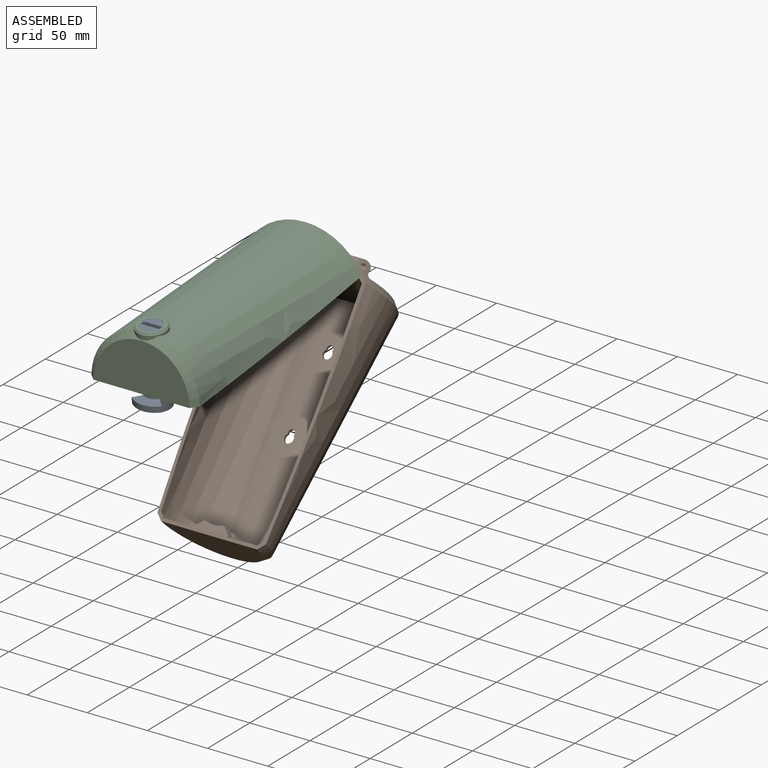
[diagram: assembled view]
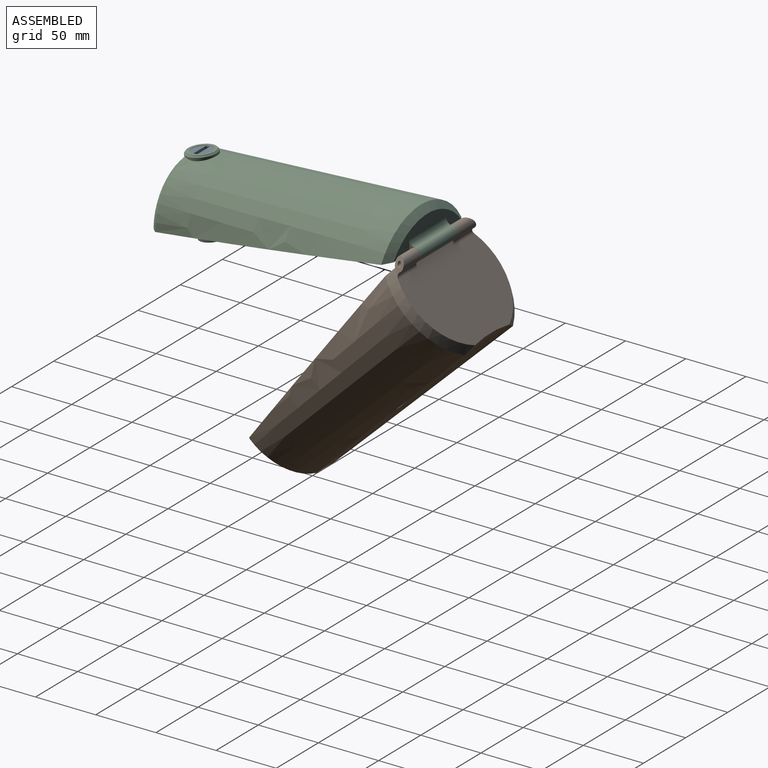
[diagram: assembled view, second angle]
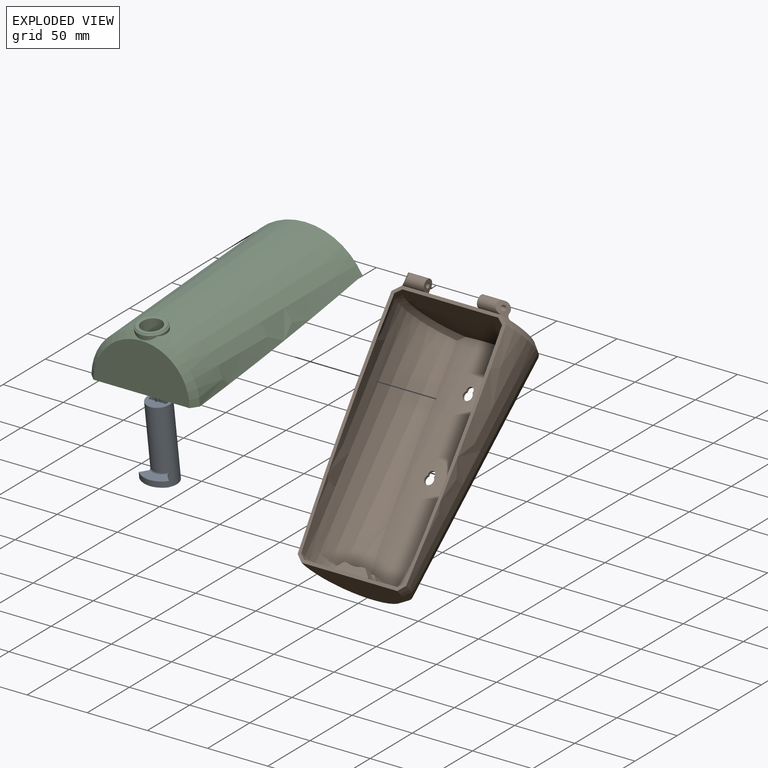
[diagram: exploded view]
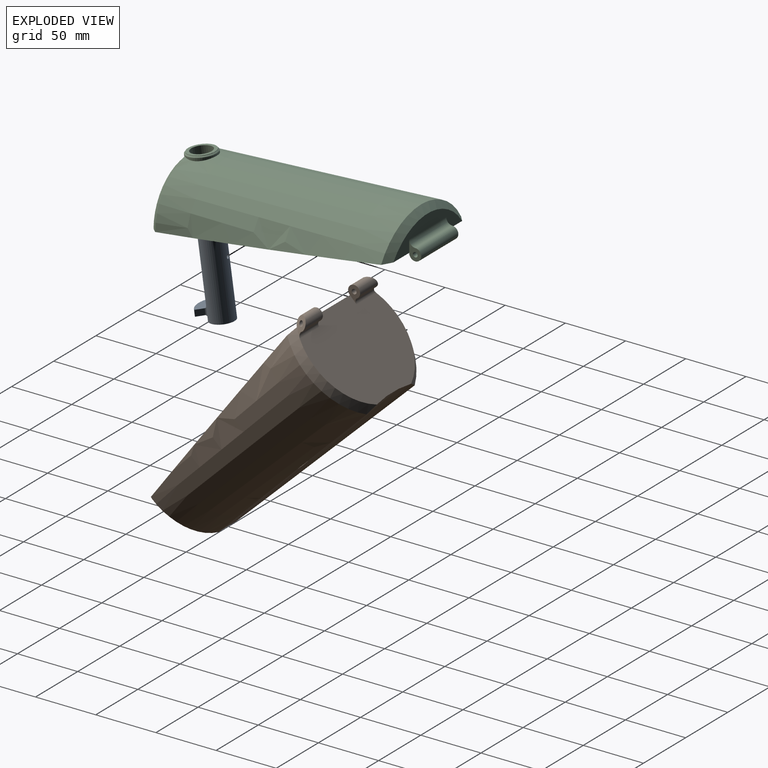
[diagram: exploded view, second angle]
ASSEMBLY  parts=3 mates=2
PART A: 31 faces, bbox 25.2x29.6x65.9 mm
  f0: cylinder r=10mm len=65.93mm, axis (0,0.14,-0.99), area 3855.2mm2, adj f1,f2,f21,f27,f28,f29,f30
  f1: plane 20x19.8mm, normal (0,-0.14,0.99), area 262.5mm2, adj f0,f3,f4,f5,f6,f8,f10,f13
  f2: plane 20x19.8mm, normal (0,0.14,-0.99), area 314.2mm2, adj f0
  f3: plane 13x5.15mm, normal (0,0.99,0.14), area 67.6mm2, adj f1,f10,f16,f19
  f4: plane 5.36x2.22mm, normal (-1,0,0), area 7.8mm2, adj f1,f13,f17,f19
  f5: plane 13x5.15mm, normal (0,-0.99,-0.14), area 67.6mm2, adj f1,f8,f12,f13
  f6: plane 5.36x2.22mm, normal (1,0,0), area 7.8mm2, adj f1,f8,f10,f11
  f7: plane 13x1.49mm, normal (0,-0.14,0.99), area 19.5mm2, adj f11,f12,f16,f17
  f8: cylinder r=1mm len=5.29mm, axis (0,-0.14,0.99), area 8.2mm2, adj f1,f5,f6,f9
  f9: sphere r=1mm, area 1.5mm2, adj f8,f11,f12
  f10: cylinder r=1mm len=5.29mm, axis (0,0.14,-0.99), area 8.2mm2, adj f1,f3,f6,f14
  f11: cylinder r=1mm len=1.63mm, axis (0,-0.99,-0.14), area 2.4mm2, adj f6,f7,f9,f14
  f12: cylinder r=1mm len=13mm, axis (-1,0,0), area 20.4mm2, adj f5,f7,f9,f15
  f13: cylinder r=1mm len=5.29mm, axis (0,0.14,-0.99), area 8.2mm2, adj f1,f4,f5,f15
  f14: sphere r=1mm, area 1.6mm2, adj f10,f11,f16
  f15: sphere r=1mm, area 1.5mm2, adj f12,f13,f17
  f16: cylinder r=1mm len=13mm, axis (1,0,0), area 20.4mm2, adj f3,f7,f14,f18
  f17: cylinder r=1mm len=1.63mm, axis (0,0.99,0.14), area 2.4mm2, adj f4,f7,f15,f18
  f18: sphere r=1mm, area 1.6mm2, adj f16,f17,f19
  f19: cylinder r=1mm len=5.29mm, axis (0,-0.14,0.99), area 8.2mm2, adj f1,f3,f4,f18
  f20: cone r=0mm half-angle=59deg, axis (0,0.99,0.14), area 10.6mm2, adj f21
  f21: cylinder r=1.7mm len=6.17mm, axis (0,0.99,0.14), area 58.4mm2, adj f0,f20
  f22: plane 5.81x5.68mm, normal (0.73,0.68,0.1), area 35.3mm2, adj f23,f25,f26,f28,f29,f30
  f23: cylinder r=18.46mm len=25.18mm, axis (0,0.14,-0.99), area 138.5mm2, adj f22,f24,f25,f26
  f24: plane 5.81x5.68mm, normal (-0.73,0.68,0.1), area 35.3mm2, adj f23,f25,f26,f27,f28,f29
  f25: plane 25.18x9.95mm, normal (0,-0.14,0.99), area 156.4mm2, adj f22,f23,f24,f28
  f26: plane 25.18x9.95mm, normal (0,0.14,-0.99), area 156.4mm2, adj f22,f23,f24,f29
  f27: cylinder r=1.5mm len=8.2mm, axis (0,0.14,-0.99), area 13.2mm2, adj f0,f24,f28,f29
  f28: torus R=11.5mm, axis (0,0.14,-0.99), area 39.4mm2, adj f0,f22,f24,f25,f27,f30
  f29: torus R=11.5mm, axis (0,0.14,-0.99), area 39.4mm2, adj f0,f22,f24,f26,f27,f30
  f30: cylinder r=1.5mm len=8.2mm, axis (0,0.14,-0.99), area 13.2mm2, adj f0,f22,f28,f29
PART B: 48 faces, bbox 110x210.1x87.2 mm
  f0: cylinder r=127.96mm len=192.77mm, axis (0,1,0), area 7667.4mm2, adj f2,f3,f20,f21,f22,f23,f24,f25
  f1: cylinder r=125.46mm len=196.35mm, axis (0,1,0), area 7951.6mm2, adj f2,f3,f15,f26,f27,f28,f30,f31
  f2: cylinder r=2.75mm len=5.5mm, axis (0,-0.14,0.99), area 27.8mm2, adj f0,f1,f47
  f3: cylinder r=2.75mm len=5.5mm, axis (0,-0.14,0.99), area 27.8mm2, adj f0,f1,f46
  f4: plane 28.49x6.81mm, normal (0.73,0.68,0.05), area 185.3mm2, adj f5,f35,f36,f37,f38,f42,f43,f44
  f5: plane 7.72x2.93mm, normal (0,1,0.05), area 21.7mm2, adj f4,f6,f37,f43
  f6: cone r=19.9mm half-angle=3deg, axis (0,0,1), area 96.9mm2, adj f5,f7,f37,f41,f43
  f7: plane 7.72x2.93mm, normal (0,1,0.05), area 21.7mm2, adj f6,f8,f37,f43
  f8: plane 28.49x6.81mm, normal (-0.73,0.68,0.05), area 185.3mm2, adj f7,f34,f36,f37,f40,f42,f43,f44
  f9: plane 77.52x39.02mm, normal (0,1,0), area 1492.6mm2, adj f14,f25,f34,f35,f37,f45
  f10: cylinder r=5mm len=21.76mm, axis (-1,0,0), area 446.2mm2, adj f11,f12,f14,f32
  f11: cylinder r=49.69mm len=12.75mm, axis (0,-1,0), area 87.9mm2, adj f10,f13,f14,f27,f32
  f12: plane 12.75x10mm, normal (1,0,0), area 72.2mm2, adj f10,f13,f14,f15,f32
  f13: cylinder r=2mm len=20.03mm, axis (-1,0,0), area 234.6mm2, adj f11,f12
  f14: plane 200.13x96.54mm, normal (0,-0.14,0.99), area 1478.8mm2, adj f9,f10,f11,f12,f15,f16,f17,f18
  f15: plane 99.38x73.61mm, normal (0,1,0), area 6038.1mm2, adj f1,f12,f14,f18,f27,f30,f32,f33
  f16: cylinder r=5mm len=21.76mm, axis (-1,0,0), area 446.2mm2, adj f14,f17,f18,f33
  f17: cylinder r=49.69mm len=12.76mm, axis (0,-1,0), area 87.9mm2, adj f14,f16,f19,f30,f33
  f18: plane 12.75x10mm, normal (-1,0,0), area 72.2mm2, adj f14,f15,f16,f19,f33
  f19: cylinder r=2mm len=20.03mm, axis (-1,0,0), area 234.6mm2, adj f17,f18
  f20: cone r=47.5mm half-angle=3deg, axis (0,1,0), area 12812mm2, adj f0,f14,f24,f25
  f21: cone r=53.14mm half-angle=43.5deg, axis (0,-1,0), area 450.6mm2, adj f0,f14,f22,f23
  f22: plane 97.23x71.07mm, normal (0,-1,0), area 6043.4mm2, adj f0,f14,f21,f24
  f23: cone r=47.5mm half-angle=3deg, axis (0,1,0), area 12785mm2, adj f0,f14,f21,f25
  f24: cone r=53.14mm half-angle=43.5deg, axis (0,-1,0), area 451.5mm2, adj f0,f14,f20,f22
  f25: cone r=38.04mm half-angle=46.5deg, axis (0,1,0), area 651.2mm2, adj f0,f9,f14,f20,f23
  f26: cone r=50mm half-angle=3deg, axis (0,1,0), area 13634.6mm2, adj f1,f14,f30,f31
  f27: cone r=54.95mm half-angle=43.5deg, axis (0,-1,0), area 655.8mm2, adj f1,f11,f14,f15,f28
  f28: cone r=50mm half-angle=3deg, axis (0,1,0), area 13605.8mm2, adj f1,f14,f27,f31
  f29: plane 79.52x39.66mm, normal (0,-1,0), area 2475.1mm2, adj f14,f31
  f30: cone r=54.95mm half-angle=43.5deg, axis (0,-1,0), area 657mm2, adj f1,f14,f15,f17,f26
  f31: cone r=39.76mm half-angle=46.5deg, axis (0,1,0), area 944.5mm2, adj f1,f14,f26,f28,f29
  f32: cylinder r=3mm len=23.12mm, axis (-1,0,0), area 120.7mm2, adj f10,f11,f12,f15
  f33: cylinder r=3mm len=23.12mm, axis (-1,0,0), area 120.7mm2, adj f15,f16,f17,f18
  f34: plane 30x1.57mm, normal (-1,0,0.05), area 35.8mm2, adj f8,f9,f37,f45
  f35: plane 30x1.57mm, normal (1,0,0.05), area 35.8mm2, adj f4,f9,f37,f45
  f36: plane 23.91x2.72mm, normal (0,0,-1), area 50.4mm2, adj f4,f8,f38,f39,f40,f45
  f37: plane 28x6.41mm, normal (0,0,1), area 143.2mm2, adj f4,f5,f6,f7,f8,f9,f34,f35
  f38: plane 11.77x3.47mm, normal (0,1,0.05), area 38.7mm2, adj f4,f36,f39,f44
  f39: cone r=19.9mm half-angle=3deg, axis (0,0,1), area 142.1mm2, adj f36,f38,f40,f44
  f40: plane 11.77x3.47mm, normal (0,1,0.05), area 38.7mm2, adj f8,f36,f39,f44
  f41: torus R=11.5mm, axis (0,0.14,-0.99), area 0.2mm2, adj f6,f43
  f42: cylinder r=18.71mm len=24.74mm, axis (0,0.14,-0.99), area 147.3mm2, adj f4,f8,f43,f44
  f43: plane 24.77x8.2mm, normal (0,0.14,-0.99), area 147.5mm2, adj f4,f5,f6,f7,f8,f41,f42
  f44: plane 24.37x7.68mm, normal (0,-0.14,0.99), area 136.6mm2, adj f4,f8,f38,f39,f40,f42
  f45: plane 31.14x5mm, normal (0,0.71,-0.71), area 201.8mm2, adj f4,f8,f9,f34,f35,f36
  f46: cylinder r=3.8mm len=7.6mm, axis (0,-0.14,0.99), area 46.5mm2, adj f0,f1,f3
  f47: cylinder r=3.8mm len=7.6mm, axis (0,-0.14,0.99), area 46.5mm2, adj f0,f1,f2
PART C: 43 faces, bbox 110x210x55.1 mm
  f0: cylinder r=12.25mm len=41.65mm, axis (0,0.14,-0.99), area 1803.2mm2, adj f10,f14,f37,f38,f39,f40,f41,f42
  f1: cylinder r=10.25mm len=47.24mm, axis (0,0.14,-0.99), area 2804.7mm2, adj f10,f30,f39,f40,f41,f42
  f2: cone r=38.04mm half-angle=46.5deg, axis (0,1,0), area 271.7mm2, adj f3,f10,f14,f37
  f3: plane 36.16x25.75mm, normal (0,1,0), area 467.5mm2, adj f2,f10,f35,f37
  f4: plane 36.16x25.75mm, normal (0,1,0), area 467.5mm2, adj f5,f10,f34,f38
  f5: cone r=38.04mm half-angle=46.5deg, axis (0,1,0), area 271.7mm2, adj f4,f10,f14,f38
  f6: plane 15x10mm, normal (1,0,0), area 76.6mm2, adj f8,f9,f10,f11,f12,f25,f26,f27
  f7: plane 15x10mm, normal (-1,0,0), area 76.6mm2, adj f8,f9,f10,f11,f12,f25,f26,f27
  f8: cylinder r=5mm len=44mm, axis (-1,0,0), area 4.4mm2, adj f6,f7,f10,f25
  f9: cylinder r=5mm len=44mm, axis (-1,0,0), area 1013.6mm2, adj f6,f7,f26,f27
  f10: plane 199.99x96.46mm, normal (0,0.14,-0.99), area 1817.2mm2, adj f0,f1,f2,f3,f4,f5,f6,f7
  f11: plane 80.89x21.3mm, normal (0,1,0), area 763.1mm2, adj f6,f7,f10,f17,f20,f21,f22,f24
  f12: cylinder r=2mm len=44mm, axis (-1,0,0), area 552.9mm2, adj f6,f7
  f13: cone r=53.14mm half-angle=43.5deg, axis (0,-1,0), area 548.4mm2, adj f10,f14,f15
  f14: cone r=47.5mm half-angle=3deg, axis (0,1,0), area 22135.3mm2, adj f0,f2,f5,f10,f13,f37,f38
  f15: plane 79.43x20.58mm, normal (0,-1,0), area 1146.3mm2, adj f10,f13
  f16: cone r=39.76mm half-angle=46.5deg, axis (0,1,0), area 848.5mm2, adj f10,f18,f28,f36
  f17: cone r=54.95mm half-angle=43.5deg, axis (0,-1,0), area 804.6mm2, adj f10,f11,f18,f19,f23
  f18: cone r=50mm half-angle=3deg, axis (0,1,0), area 23877.8mm2, adj f10,f16,f17,f28
  f19: cylinder r=49.69mm len=0.48mm, axis (0,-1,0), area 0mm2, adj f10,f17,f21
  f20: plane 0.48x0.03mm, normal (1,0,0), area 0mm2, adj f10,f11,f21
  f21: cylinder r=5mm len=18.68mm, axis (-1,0,0), area 8.9mm2, adj f10,f11,f19,f20
  f22: plane 0.48x0.03mm, normal (-1,0,0), area 0mm2, adj f10,f11,f24
  f23: cylinder r=49.69mm len=0.48mm, axis (0,-1,0), area 0mm2, adj f10,f17,f24
  f24: cylinder r=5mm len=18.68mm, axis (-1,0,0), area 8.9mm2, adj f10,f11,f22,f23
  f25: plane 44x0.03mm, normal (0,0.14,-0.99), area 1.1mm2, adj f6,f7,f8,f26
  f26: plane 44x0.45mm, normal (0,-1,0), area 19.7mm2, adj f6,f7,f9,f25
  f27: cylinder r=5mm len=44mm, axis (-1,0,0), area 345mm2, adj f6,f7,f9,f11
  f28: cylinder r=12.25mm len=24.8mm, axis (0,0.14,-0.99), area 173.3mm2, adj f16,f18,f29
  f29: cone r=12.25mm half-angle=45deg, axis (0,0.14,-0.99), area 104.4mm2, adj f28,f31
  f30: plane 20.5x20.3mm, normal (0,0.14,-0.99), area 98.7mm2, adj f1,f32
  f31: cylinder r=11.25mm len=22.5mm, axis (0,0.14,-0.99), area 17.7mm2, adj f29,f33
  f32: cylinder r=8.58mm len=17.16mm, axis (0,0.14,-0.99), area 13.5mm2, adj f30,f33
  f33: plane 22.5x22.28mm, normal (0,-0.14,0.99), area 166.3mm2, adj f31,f32
  f34: plane 32.78x10.91mm, normal (-0.39,0.91,0.13), area 192.2mm2, adj f4,f10,f38
  f35: plane 32.78x10.91mm, normal (0.39,0.91,0.13), area 192.2mm2, adj f3,f10,f37
  f36: plane 79.83x39.9mm, normal (0,-1,0), area 2501.2mm2, adj f10,f16
  f37: cylinder r=5mm len=40.44mm, axis (0,0.14,-0.99), area 299.1mm2, adj f0,f2,f3,f10,f14,f35
  f38: cylinder r=5mm len=40.44mm, axis (0,0.14,-0.99), area 299.1mm2, adj f0,f4,f5,f10,f14,f34
  f39: plane 5.23x2.68mm, normal (-1,0,0), area 10mm2, adj f0,f1,f41,f42
  f40: plane 4.95x2mm, normal (0,0.99,0.14), area 10mm2, adj f0,f1,f41,f42
  f41: plane 12.25x12.13mm, normal (0,-0.14,0.99), area 35.3mm2, adj f0,f1,f39,f40
  f42: plane 12.25x12.13mm, normal (0,0.14,-0.99), area 35.3mm2, adj f0,f1,f39,f40
PLACE A t=(-4.74,-7.56,-1.07)mm
PLACE B rot(axis=(1,0,0),45deg) t=(-4.64,43.26,-67.24)mm
PLACE C t=(-4.74,-7.53,-1.31)mm
MATE revolute C.f8 <-> B.f10  axis (-1,0,0) through (-26.74,97.44,27.04)mm
MATE revolute A.f23 <-> C.f29  axis (0,-0.14,0.99) through (-4.74,-95.41,45.66)mm
